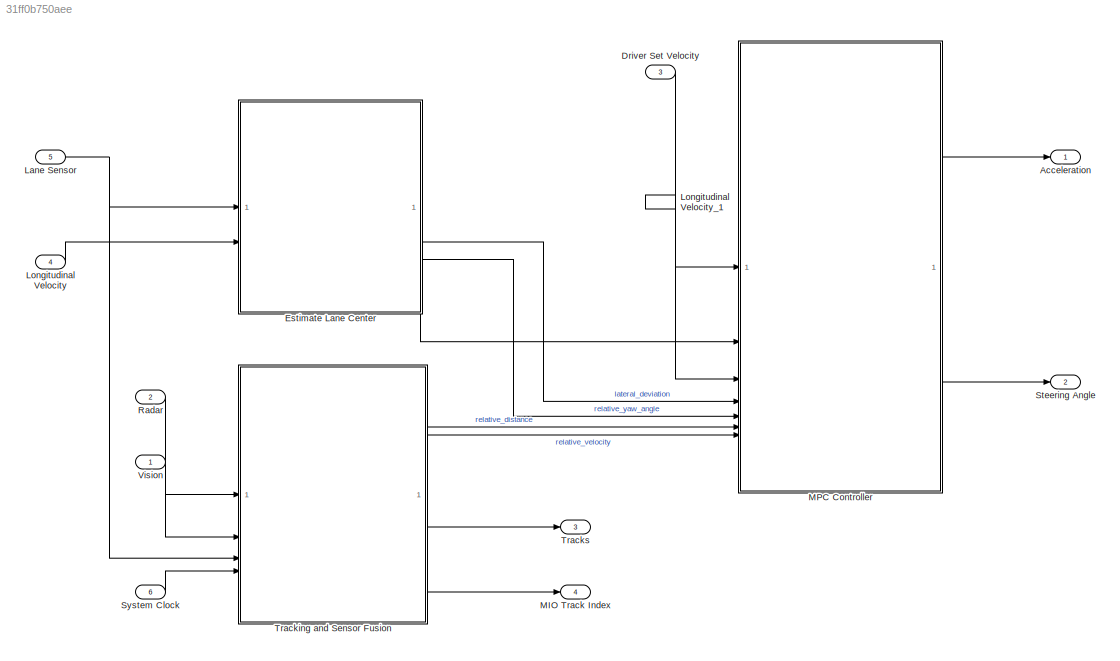
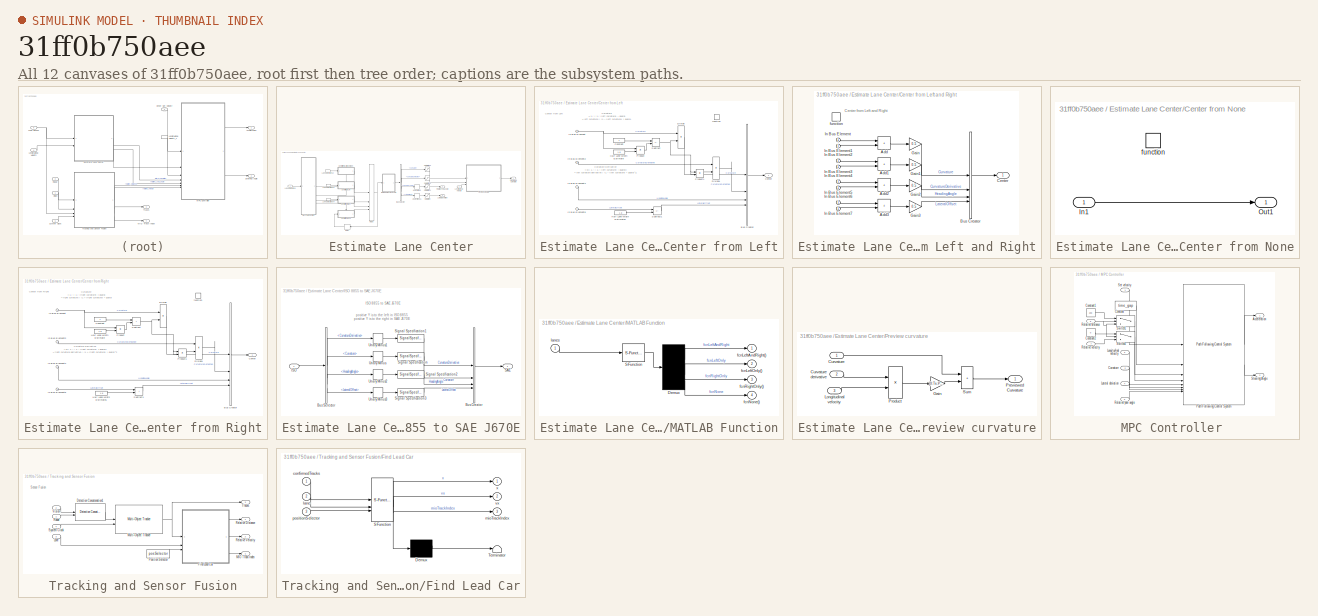
[diagram: thumbnail index - all 12 canvases of the model, root first then tree order]
MODEL slx_31ff0b750aee
KIND model
CONFIG AbsTol = auto
CONFIG EnableMultiTasking = off
CONFIG FixedStep = Ts
CONFIG MaxStep = auto
CONFIG MinStep = auto
CONFIG RelTol = 1e-3
CONFIG SampleTimeConstraint = Unconstrained
CONFIG SolverName = FixedStepDiscrete
CONFIG StartTime = 0.0
CONFIG StopTime = inf
BLOCK [Outport] Acceleration
  PortDimensions = 1
  SamplingMode = Sample based
  SignalType = real
  VectorParamsAs1DForOutWhenUnconnected = off
BLOCK [Inport] Driver Set Velocity
  OutDataTypeStr = double
  Port = 3
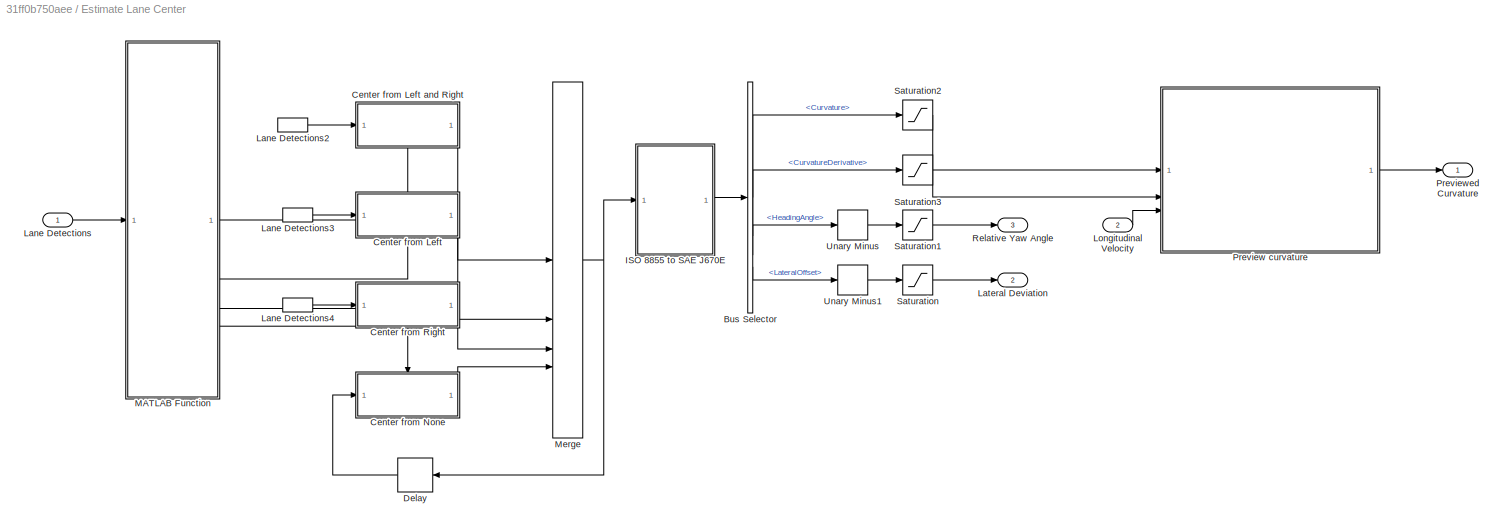
BLOCK [SubSystem] Estimate Lane Center
  RTWFileNameOpts = Use function name
  RTWSystemCode = Reusable function
  TreatAsAtomicUnit = on
  VariantControl = v2
BLOCK [BusSelector] Estimate Lane Center/Bus Selector
  OutputSignals = Curvature,CurvatureDerivative,HeadingAngle,LateralOffset
BLOCK [SubSystem] Estimate Lane Center/Center from Left
  TreatAsAtomicUnit = on
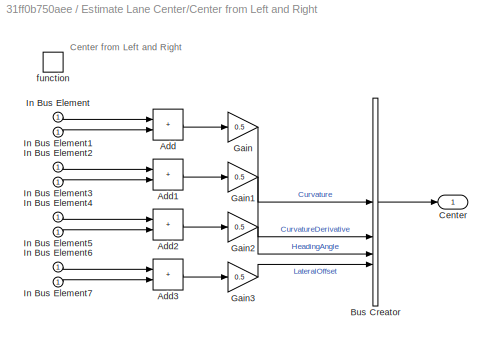
BLOCK [SubSystem] Estimate Lane Center/Center from Left and Right
  TreatAsAtomicUnit = on
BLOCK [Sum] Estimate Lane Center/Center from Left and Right/Add
  IconShape = rectangular
BLOCK [Sum] Estimate Lane Center/Center from Left and Right/Add1
  IconShape = rectangular
BLOCK [Sum] Estimate Lane Center/Center from Left and Right/Add2
  IconShape = rectangular
BLOCK [Sum] Estimate Lane Center/Center from Left and Right/Add3
  IconShape = rectangular
BLOCK [BusCreator] Estimate Lane Center/Center from Left and Right/Bus Creator
  DisplayOption = bar
  InheritFromInputs = on
  Inputs = 4
BLOCK [Outport] Estimate Lane Center/Center from Left and Right/Center
  VectorParamsAs1DForOutWhenUnconnected = off
BLOCK [Gain] Estimate Lane Center/Center from Left and Right/Gain
  Gain = 0.5
BLOCK [Gain] Estimate Lane Center/Center from Left and Right/Gain1
  Gain = 0.5
BLOCK [Gain] Estimate Lane Center/Center from Left and Right/Gain2
  Gain = 0.5
BLOCK [Gain] Estimate Lane Center/Center from Left and Right/Gain3
  Gain = 0.5
BLOCK [Inport] Estimate Lane Center/Center from Left and Right/In Bus Element
BLOCK [Inport] Estimate Lane Center/Center from Left and Right/In Bus Element1
BLOCK [Inport] Estimate Lane Center/Center from Left and Right/In Bus Element2
BLOCK [Inport] Estimate Lane Center/Center from Left and Right/In Bus Element3
BLOCK [Inport] Estimate Lane Center/Center from Left and Right/In Bus Element4
BLOCK [Inport] Estimate Lane Center/Center from Left and Right/In Bus Element5
BLOCK [Inport] Estimate Lane Center/Center from Left and Right/In Bus Element6
BLOCK [Inport] Estimate Lane Center/Center from Left and Right/In Bus Element7
BLOCK [TriggerPort] Estimate Lane Center/Center from Left and Right/function
  StatesWhenEnabling = held
  TriggerType = function-call
  VariantControl = Variant
BLOCK [BusCreator] Estimate Lane Center/Center from Left/Bus Creator
  DisplayOption = bar
  InheritFromInputs = on
  Inputs = 4
BLOCK [Outport] Estimate Lane Center/Center from Left/Center
  VectorParamsAs1DForOutWhenUnconnected = off
BLOCK [Constant] Estimate Lane Center/Center from Left/Constant
  OutDataTypeStr = Inherit: Inherit via back propagation
BLOCK [Product] Estimate Lane Center/Center from Left/Divide
  Inputs = */
BLOCK [Product] Estimate Lane Center/Center from Left/Divide1
  Inputs = */
BLOCK [Constant] Estimate Lane Center/Center from Left/Half Lane Width Estimate
  OutDataTypeStr = Inherit: Inherit via back propagation
  Value = 1.8
BLOCK [Constant] Estimate Lane Center/Center from Left/Half Lane Width Estimate1
  OutDataTypeStr = Inherit: Inherit via back propagation
  Value = 1.8
BLOCK [Inport] Estimate Lane Center/Center from Left/In Bus Element
BLOCK [Inport] Estimate Lane Center/Center from Left/In Bus Element2
BLOCK [Inport] Estimate Lane Center/Center from Left/In Bus Element4
BLOCK [Inport] Estimate Lane Center/Center from Left/In Bus Element6
BLOCK [Product] Estimate Lane Center/Center from Left/Product
BLOCK [Product] Estimate Lane Center/Center from Left/Product1
BLOCK [Sum] Estimate Lane Center/Center from Left/Subtract
  IconShape = rectangular
  Inputs = +-
BLOCK [Sum] Estimate Lane Center/Center from Left/Subtract1
  IconShape = rectangular
  Inputs = +-
BLOCK [TriggerPort] Estimate Lane Center/Center from Left/function
  StatesWhenEnabling = held
  TriggerType = function-call
  VariantControl = Variant
BLOCK [SubSystem] Estimate Lane Center/Center from None
  TreatAsAtomicUnit = on
BLOCK [Inport] Estimate Lane Center/Center from None/In1
BLOCK [Outport] Estimate Lane Center/Center from None/Out1
  VectorParamsAs1DForOutWhenUnconnected = off
BLOCK [TriggerPort] Estimate Lane Center/Center from None/function
  StatesWhenEnabling = held
  TriggerType = function-call
  VariantControl = Variant
BLOCK [SubSystem] Estimate Lane Center/Center from Right
  TreatAsAtomicUnit = on
BLOCK [BusCreator] Estimate Lane Center/Center from Right/Bus Creator
  DisplayOption = bar
  InheritFromInputs = on
  Inputs = 4
BLOCK [Outport] Estimate Lane Center/Center from Right/Center
  VectorParamsAs1DForOutWhenUnconnected = off
BLOCK [Constant] Estimate Lane Center/Center from Right/Constant
  OutDataTypeStr = Inherit: Inherit via back propagation
BLOCK [Product] Estimate Lane Center/Center from Right/Divide
  Inputs = */
BLOCK [Product] Estimate Lane Center/Center from Right/Divide1
  Inputs = */
BLOCK [Constant] Estimate Lane Center/Center from Right/Half Lane Width Estimate
  OutDataTypeStr = Inherit: Inherit via back propagation
  Value = 1.8
BLOCK [Constant] Estimate Lane Center/Center from Right/Half Lane Width Estimate1
  OutDataTypeStr = Inherit: Inherit via back propagation
  Value = 1.8
BLOCK [Inport] Estimate Lane Center/Center from Right/In Bus Element
BLOCK [Inport] Estimate Lane Center/Center from Right/In Bus Element2
BLOCK [Inport] Estimate Lane Center/Center from Right/In Bus Element4
BLOCK [Inport] Estimate Lane Center/Center from Right/In Bus Element6
BLOCK [Product] Estimate Lane Center/Center from Right/Product
BLOCK [Product] Estimate Lane Center/Center from Right/Product1
BLOCK [Sum] Estimate Lane Center/Center from Right/Subtract
  IconShape = rectangular
BLOCK [Sum] Estimate Lane Center/Center from Right/Subtract1
  IconShape = rectangular
BLOCK [TriggerPort] Estimate Lane Center/Center from Right/function
  StatesWhenEnabling = held
  TriggerType = function-call
  VariantControl = Variant
BLOCK [Delay] Estimate Lane Center/Delay
  DelayLength = 1
  InputPortMap = u0
BLOCK [SubSystem] Estimate Lane Center/ISO 8855 to SAE J670E
BLOCK [BusCreator] Estimate Lane Center/ISO 8855 to SAE J670E/Bus Creator
  DisplayOption = bar
  InheritFromInputs = on
  Inputs = 4
BLOCK [BusSelector] Estimate Lane Center/ISO 8855 to SAE J670E/Bus Selector
  OutputSignals = CurvatureDerivative,Curvature,HeadingAngle,LateralOffset
BLOCK [Inport] Estimate Lane Center/ISO 8855 to SAE J670E/ISO
BLOCK [Outport] Estimate Lane Center/ISO 8855 to SAE J670E/SAE
  VectorParamsAs1DForOutWhenUnconnected = off
BLOCK [SignalSpecification] Estimate Lane Center/ISO 8855 to SAE J670E/Signal Specification
  Unit = 1/m^2
BLOCK [SignalSpecification] Estimate Lane Center/ISO 8855 to SAE J670E/Signal Specification1
  Unit = 1/m
BLOCK [SignalSpecification] Estimate Lane Center/ISO 8855 to SAE J670E/Signal Specification2
  Unit = rad
BLOCK [SignalSpecification] Estimate Lane Center/ISO 8855 to SAE J670E/Signal Specification3
  Unit = m
BLOCK [UnaryMinus] Estimate Lane Center/ISO 8855 to SAE J670E/Unary Minus
BLOCK [UnaryMinus] Estimate Lane Center/ISO 8855 to SAE J670E/Unary Minus1
BLOCK [UnaryMinus] Estimate Lane Center/ISO 8855 to SAE J670E/Unary Minus2
BLOCK [UnaryMinus] Estimate Lane Center/ISO 8855 to SAE J670E/Unary Minus3
BLOCK [Inport] Estimate Lane Center/Lane Detections
BLOCK [InportShadow] Estimate Lane Center/Lane Detections2
BLOCK [InportShadow] Estimate Lane Center/Lane Detections3
BLOCK [InportShadow] Estimate Lane Center/Lane Detections4
BLOCK [Outport] Estimate Lane Center/Lateral Deviation
  Port = 2
  VectorParamsAs1DForOutWhenUnconnected = off
BLOCK [Inport] Estimate Lane Center/Longitudinal Velocity
  Port = 2
BLOCK [SubSystem] Estimate Lane Center/MATLAB Function
  ErrorFcn = Stateflow.Translate.translate
  PermitHierarchicalResolution = ExplicitOnly
  SFBlockType = MATLAB Function
  TreatAsAtomicUnit = on
BLOCK [Demux] Estimate Lane Center/MATLAB Function/ Demux 
BLOCK [S-Function] Estimate Lane Center/MATLAB Function/ SFunction 
  EnableBusSupport = on
  FunctionName = sf_sfun
  PortCounts = [1 1]
  SFcnIsStateOwnerBlock = off
  SFunctionDeploymentMode = off
  Tag = Stateflow S-Function 9
BLOCK [Outport] Estimate Lane Center/MATLAB Function/fcnLeftAndRight()
  VectorParamsAs1DForOutWhenUnconnected = off
BLOCK [Outport] Estimate Lane Center/MATLAB Function/fcnLeftOnly()
  Port = 2
  VectorParamsAs1DForOutWhenUnconnected = off
BLOCK [Outport] Estimate Lane Center/MATLAB Function/fcnNone()
  Port = 4
  VectorParamsAs1DForOutWhenUnconnected = off
BLOCK [Outport] Estimate Lane Center/MATLAB Function/fcnRightOnly()
  Port = 3
  VectorParamsAs1DForOutWhenUnconnected = off
BLOCK [Inport] Estimate Lane Center/MATLAB Function/lanes
BLOCK [Merge] Estimate Lane Center/Merge
  Inputs = 4
BLOCK [SubSystem] Estimate Lane Center/Preview curvature
BLOCK [Inport] Estimate Lane Center/Preview curvature/Curvature
BLOCK [Inport] Estimate Lane Center/Preview curvature/Curvature derivative
  Port = 2
BLOCK [Gain] Estimate Lane Center/Preview curvature/Gain
  Gain = [0:Ts:PredictionHorizon*Ts]'
BLOCK [Inport] Estimate Lane Center/Preview curvature/Longitudinal velocity
  Port = 3
BLOCK [Outport] Estimate Lane Center/Preview curvature/Previewed Curvature
  VectorParamsAs1DForOutWhenUnconnected = off
BLOCK [Product] Estimate Lane Center/Preview curvature/Product
BLOCK [Sum] Estimate Lane Center/Preview curvature/Sum
  IconShape = rectangular
BLOCK [Outport] Estimate Lane Center/Previewed Curvature
  VectorParamsAs1DForOutWhenUnconnected = off
BLOCK [Outport] Estimate Lane Center/Relative Yaw Angle
  Port = 3
  VectorParamsAs1DForOutWhenUnconnected = off
BLOCK [Saturate] Estimate Lane Center/Saturation
BLOCK [Saturate] Estimate Lane Center/Saturation1
  LowerLimit = -0.6
  UpperLimit = 0.6
BLOCK [Saturate] Estimate Lane Center/Saturation2
  LowerLimit = -0.15
  UpperLimit = 0.15
BLOCK [Saturate] Estimate Lane Center/Saturation3
  LowerLimit = -0.06
  UpperLimit = 0.06
BLOCK [UnaryMinus] Estimate Lane Center/Unary Minus
BLOCK [UnaryMinus] Estimate Lane Center/Unary Minus1
BLOCK [Inport] Lane Sensor
  OutDataTypeStr = Bus: LaneSensor
  Port = 5
  PortDimensions = [1 1]
BLOCK [Inport] Longitudinal Velocity
  OutDataTypeStr = double
  Port = 4
  SamplingMode = Sample based
  Unit = m/s
BLOCK [InportShadow] Longitudinal Velocity_1
  OutDataTypeStr = double
  Port = 4
  SamplingMode = Sample based
  Unit = m/s
BLOCK [Outport] MIO Track Index
  BusOutputAsStruct = on
  Port = 4
  PortDimensions = 1
  SamplingMode = Sample based
  SignalType = real
  VectorParamsAs1DForOutWhenUnconnected = off
BLOCK [SubSystem] MPC Controller 
BLOCK [Outport] MPC Controller /Acceleration
  VectorParamsAs1DForOutWhenUnconnected = off
BLOCK [Constant] MPC Controller /Constant
  Value = time_gap
BLOCK [Constant] MPC Controller /Constant1
  Value = 200
BLOCK [Constant] MPC Controller /Constant2
  Value = 0
BLOCK [Inport] MPC Controller /Curvature
  Port = 2
BLOCK [Inport] MPC Controller /Lateral deviation
  Port = 4
BLOCK [Inport] MPC Controller /Longitudinal velocity
  Port = 3
BLOCK [Reference] MPC Controller /Path Following Control System  REF=mpcadaslib/Path Following Control System
  SourceBlock = mpcadaslib/Path Following Control System
  SourceType = Path following control (PFC) system
BLOCK [Inport] MPC Controller /Relative distance
  Port = 6
BLOCK [Inport] MPC Controller /Relative velocity
  Port = 7
BLOCK [Inport] MPC Controller /Relative yaw angle
  Port = 5
BLOCK [Inport] MPC Controller /Set velocity
BLOCK [Outport] MPC Controller /Steering Angle
  Port = 2
  VectorParamsAs1DForOutWhenUnconnected = off
BLOCK [Switch] MPC Controller /Switch1
  Criteria = u2 > Threshold
  InputSameDT = off
  SaturateOnIntegerOverflow = off
  Threshold = 1000
BLOCK [Switch] MPC Controller /Switch2
  Criteria = u2 > Threshold
  InputSameDT = off
  SaturateOnIntegerOverflow = off
  Threshold = 1000
BLOCK [Inport] Radar
  BusOutputAsStruct = on
  OutDataTypeStr = Bus: BusRadar
  Port = 2
  PortDimensions = [1 1]
BLOCK [Outport] Steering Angle
  Port = 2
  PortDimensions = 1
  SamplingMode = Sample based
  SignalType = real
  VectorParamsAs1DForOutWhenUnconnected = off
BLOCK [Inport] System Clock
  OutDataTypeStr = double
  Port = 6
  PortDimensions = [1 1]
BLOCK [SubSystem] Tracking and Sensor Fusion
  RTWFileNameOpts = Use function name
  RTWSystemCode = Reusable function
  TreatAsAtomicUnit = on
BLOCK [Reference] Tracking and Sensor Fusion/Detection Concatenation1  REF=trackingutilitieslib/Detection Concatenation
  SourceBlock = trackingutilitieslib/Detection Concatenation
  SourceType = matlabshared.tracking.internal.DetectionConcatenation
BLOCK [SubSystem] Tracking and Sensor Fusion/Find Lead Car
  ErrorFcn = Stateflow.Translate.translate
  PermitHierarchicalResolution = ExplicitOnly
  SFBlockType = MATLAB Function
  TreatAsAtomicUnit = on
BLOCK [Demux] Tracking and Sensor Fusion/Find Lead Car/ Demux 
  Outputs = 1
BLOCK [S-Function] Tracking and Sensor Fusion/Find Lead Car/ SFunction 
  EnableBusSupport = on
  FunctionName = sf_sfun
  PortCounts = [3 4]
  SFcnIsStateOwnerBlock = off
  SFunctionDeploymentMode = off
  Tag = Stateflow S-Function 4
BLOCK [Terminator] Tracking and Sensor Fusion/Find Lead Car/ Terminator 
BLOCK [Inport] Tracking and Sensor Fusion/Find Lead Car/confirmedTracks
BLOCK [Inport] Tracking and Sensor Fusion/Find Lead Car/lane
  Port = 2
BLOCK [Outport] Tracking and Sensor Fusion/Find Lead Car/mioTrackIndex
  Port = 3
  VectorParamsAs1DForOutWhenUnconnected = off
BLOCK [Inport] Tracking and Sensor Fusion/Find Lead Car/positionSelector
  Port = 3
BLOCK [Outport] Tracking and Sensor Fusion/Find Lead Car/vx
  Port = 2
  VectorParamsAs1DForOutWhenUnconnected = off
BLOCK [Outport] Tracking and Sensor Fusion/Find Lead Car/x
  VectorParamsAs1DForOutWhenUnconnected = off
BLOCK [Inport] Tracking and Sensor Fusion/Lane
  BusOutputAsStruct = on
  OutDataTypeStr = Bus: LaneSensor
  Port = 3
BLOCK [Outport] Tracking and Sensor Fusion/MIO Track Index
  Port = 4
  VectorParamsAs1DForOutWhenUnconnected = off
BLOCK [Reference] Tracking and Sensor Fusion/Multi-Object Tracker  REF=drivinglib/Multi-Object Tracker
  SourceBlock = drivinglib/Multi-Object Tracker
  SourceType = multiObjectTracker
BLOCK [Constant] Tracking and Sensor Fusion/Position Selector
  Value = posSelector
BLOCK [Inport] Tracking and Sensor Fusion/Radar
  BusOutputAsStruct = on
  OutDataTypeStr = Bus: BusRadar
  PortDimensions = [1 1]
BLOCK [Outport] Tracking and Sensor Fusion/Relative Distance
  VectorParamsAs1DForOutWhenUnconnected = off
BLOCK [Outport] Tracking and Sensor Fusion/Relative Velocity
  Port = 2
  VectorParamsAs1DForOutWhenUnconnected = off
BLOCK [Inport] Tracking and Sensor Fusion/System Clock
  OutDataTypeStr = double
  Port = 4
  PortDimensions = [1 1]
BLOCK [Outport] Tracking and Sensor Fusion/Tracks
  BusOutputAsStruct = on
  OutDataTypeStr = Bus:BusMultiObjectTracker1
  Port = 3
  PortDimensions = [1 1]
  SamplingMode = Sample based
  SignalType = real
  VectorParamsAs1DForOutWhenUnconnected = off
BLOCK [Inport] Tracking and Sensor Fusion/Vision
  BusOutputAsStruct = on
  OutDataTypeStr = Bus: BusVision
  Port = 2
  PortDimensions = [1 1]
BLOCK [Outport] Tracks
  BusOutputAsStruct = on
  OutDataTypeStr = Bus: BusMultiObjectTracker1
  Port = 3
  PortDimensions = [1 1]
  VectorParamsAs1DForOutWhenUnconnected = off
BLOCK [Inport] Vision
  BusOutputAsStruct = on
  OutDataTypeStr = Bus: BusVision
  PortDimensions = [1 1]
ANNOTATION Estimate Lane Center/Center from Left: Center from Left
ANNOTATION Estimate Lane Center/Center from Left: Curvature = 1 / ( 1 / (left curvature) – guard) = left curvature / (1 – (left curvature) * guard).
ANNOTATION Estimate Lane Center/Center from Left: Curvature Derivative = D[ 1 / ( 1 / (left curvature) – guard)] = left curvature derivative / (1 – (left curvature) * guard)^2.
ANNOTATION Estimate Lane Center/Center from Left and Right: Center from Left and Right
ANNOTATION Estimate Lane Center/Center from Right: Center from Right
ANNOTATION Estimate Lane Center/Center from Right: Curvature = 1 / ( 1 / (right curvature) + guard) = right curvature / (1 + (right curvature) * guard)
ANNOTATION Estimate Lane Center/Center from Right: Curvature Derivative = D[ 1 / ( 1 / (right curvature) + guard)] = right curvature derivative / (1 + (right curvature) * guard)^2
ANNOTATION Estimate Lane Center/ISO 8855 to SAE J670E: ISO 8855 to SAE J670E
ANNOTATION Estimate Lane Center/ISO 8855 to SAE J670E: positive Y is to the left in ISO 8855 positive Y is to the right in SAE J670E
ANNOTATION Tracking and Sensor Fusion: Sensor Fusion
LINE Driver Set Velocity:1 -> MPC Controller :1
LINE Estimate Lane Center/Bus Selector:1 -> Estimate Lane Center/Saturation2:1
LINE Estimate Lane Center/Bus Selector:2 -> Estimate Lane Center/Saturation3:1
LINE Estimate Lane Center/Bus Selector:3 -> Estimate Lane Center/Unary Minus:1
LINE Estimate Lane Center/Bus Selector:4 -> Estimate Lane Center/Unary Minus1:1
LINE Estimate Lane Center/Center from Left and Right/Add1:1 -> Estimate Lane Center/Center from Left and Right/Gain1:1
LINE Estimate Lane Center/Center from Left and Right/Add2:1 -> Estimate Lane Center/Center from Left and Right/Gain2:1
LINE Estimate Lane Center/Center from Left and Right/Add3:1 -> Estimate Lane Center/Center from Left and Right/Gain3:1
LINE Estimate Lane Center/Center from Left and Right/Add:1 -> Estimate Lane Center/Center from Left and Right/Gain:1
LINE Estimate Lane Center/Center from Left and Right/Bus Creator:1 -> Estimate Lane Center/Center from Left and Right/Center:1
LINE Estimate Lane Center/Center from Left and Right/Gain1:1 -> Estimate Lane Center/Center from Left and Right/Bus Creator:2
LINE Estimate Lane Center/Center from Left and Right/Gain2:1 -> Estimate Lane Center/Center from Left and Right/Bus Creator:3
LINE Estimate Lane Center/Center from Left and Right/Gain3:1 -> Estimate Lane Center/Center from Left and Right/Bus Creator:4
LINE Estimate Lane Center/Center from Left and Right/Gain:1 -> Estimate Lane Center/Center from Left and Right/Bus Creator:1
LINE Estimate Lane Center/Center from Left and Right/In Bus Element1:1 -> Estimate Lane Center/Center from Left and Right/Add:2
LINE Estimate Lane Center/Center from Left and Right/In Bus Element2:1 -> Estimate Lane Center/Center from Left and Right/Add1:1
LINE Estimate Lane Center/Center from Left and Right/In Bus Element3:1 -> Estimate Lane Center/Center from Left and Right/Add1:2
LINE Estimate Lane Center/Center from Left and Right/In Bus Element4:1 -> Estimate Lane Center/Center from Left and Right/Add2:1
LINE Estimate Lane Center/Center from Left and Right/In Bus Element5:1 -> Estimate Lane Center/Center from Left and Right/Add2:2
LINE Estimate Lane Center/Center from Left and Right/In Bus Element6:1 -> Estimate Lane Center/Center from Left and Right/Add3:1
LINE Estimate Lane Center/Center from Left and Right/In Bus Element7:1 -> Estimate Lane Center/Center from Left and Right/Add3:2
LINE Estimate Lane Center/Center from Left and Right/In Bus Element:1 -> Estimate Lane Center/Center from Left and Right/Add:1
LINE Estimate Lane Center/Center from Left and Right:1 -> Estimate Lane Center/Merge:1
LINE Estimate Lane Center/Center from Left/Bus Creator:1 -> Estimate Lane Center/Center from Left/Center:1
LINE Estimate Lane Center/Center from Left/Constant:1 -> Estimate Lane Center/Center from Left/Subtract:1
LINE Estimate Lane Center/Center from Left/Divide1:1 -> Estimate Lane Center/Center from Left/Bus Creator:2
LINE Estimate Lane Center/Center from Left/Divide:1 -> Estimate Lane Center/Center from Left/Bus Creator:1
LINE Estimate Lane Center/Center from Left/Half Lane Width Estimate1:1 -> Estimate Lane Center/Center from Left/Subtract1:2
LINE Estimate Lane Center/Center from Left/Half Lane Width Estimate:1 -> Estimate Lane Center/Center from Left/Product:2
LINE Estimate Lane Center/Center from Left/In Bus Element2:1 -> Estimate Lane Center/Center from Left/Divide1:1
LINE Estimate Lane Center/Center from Left/In Bus Element4:1 -> Estimate Lane Center/Center from Left/Bus Creator:3
LINE Estimate Lane Center/Center from Left/In Bus Element6:1 -> Estimate Lane Center/Center from Left/Subtract1:1
NET Estimate Lane Center/Center from Left/In Bus Element:1 -> Estimate Lane Center/Center from Left/Divide:1, Estimate Lane Center/Center from Left/Product:1
LINE Estimate Lane Center/Center from Left/Product1:1 -> Estimate Lane Center/Center from Left/Divide1:2
LINE Estimate Lane Center/Center from Left/Product:1 -> Estimate Lane Center/Center from Left/Subtract:2
LINE Estimate Lane Center/Center from Left/Subtract1:1 -> Estimate Lane Center/Center from Left/Bus Creator:4
NET Estimate Lane Center/Center from Left/Subtract:1 -> Estimate Lane Center/Center from Left/Divide:2, Estimate Lane Center/Center from Left/Product1:1, Estimate Lane Center/Center from Left/Product1:2
LINE Estimate Lane Center/Center from Left:1 -> Estimate Lane Center/Merge:2
LINE Estimate Lane Center/Center from None/In1:1 -> Estimate Lane Center/Center from None/Out1:1
LINE Estimate Lane Center/Center from None:1 -> Estimate Lane Center/Merge:4
LINE Estimate Lane Center/Center from Right/Bus Creator:1 -> Estimate Lane Center/Center from Right/Center:1
LINE Estimate Lane Center/Center from Right/Constant:1 -> Estimate Lane Center/Center from Right/Subtract:1
LINE Estimate Lane Center/Center from Right/Divide1:1 -> Estimate Lane Center/Center from Right/Bus Creator:2
LINE Estimate Lane Center/Center from Right/Divide:1 -> Estimate Lane Center/Center from Right/Bus Creator:1
LINE Estimate Lane Center/Center from Right/Half Lane Width Estimate1:1 -> Estimate Lane Center/Center from Right/Subtract1:2
LINE Estimate Lane Center/Center from Right/Half Lane Width Estimate:1 -> Estimate Lane Center/Center from Right/Product:2
LINE Estimate Lane Center/Center from Right/In Bus Element2:1 -> Estimate Lane Center/Center from Right/Divide1:1
LINE Estimate Lane Center/Center from Right/In Bus Element4:1 -> Estimate Lane Center/Center from Right/Bus Creator:3
LINE Estimate Lane Center/Center from Right/In Bus Element6:1 -> Estimate Lane Center/Center from Right/Subtract1:1
NET Estimate Lane Center/Center from Right/In Bus Element:1 -> Estimate Lane Center/Center from Right/Divide:1, Estimate Lane Center/Center from Right/Product:1
LINE Estimate Lane Center/Center from Right/Product1:1 -> Estimate Lane Center/Center from Right/Divide1:2
LINE Estimate Lane Center/Center from Right/Product:1 -> Estimate Lane Center/Center from Right/Subtract:2
LINE Estimate Lane Center/Center from Right/Subtract1:1 -> Estimate Lane Center/Center from Right/Bus Creator:4
NET Estimate Lane Center/Center from Right/Subtract:1 -> Estimate Lane Center/Center from Right/Divide:2, Estimate Lane Center/Center from Right/Product1:1, Estimate Lane Center/Center from Right/Product1:2
LINE Estimate Lane Center/Center from Right:1 -> Estimate Lane Center/Merge:3
LINE Estimate Lane Center/Delay:1 -> Estimate Lane Center/Center from None:1
LINE Estimate Lane Center/ISO 8855 to SAE J670E/Bus Creator:1 -> Estimate Lane Center/ISO 8855 to SAE J670E/SAE:1
LINE Estimate Lane Center/ISO 8855 to SAE J670E/Bus Selector:1 -> Estimate Lane Center/ISO 8855 to SAE J670E/Unary Minus1:1
LINE Estimate Lane Center/ISO 8855 to SAE J670E/Bus Selector:2 -> Estimate Lane Center/ISO 8855 to SAE J670E/Unary Minus:1
LINE Estimate Lane Center/ISO 8855 to SAE J670E/Bus Selector:3 -> Estimate Lane Center/ISO 8855 to SAE J670E/Unary Minus2:1
LINE Estimate Lane Center/ISO 8855 to SAE J670E/Bus Selector:4 -> Estimate Lane Center/ISO 8855 to SAE J670E/Unary Minus3:1
LINE Estimate Lane Center/ISO 8855 to SAE J670E/ISO:1 -> Estimate Lane Center/ISO 8855 to SAE J670E/Bus Selector:1
LINE Estimate Lane Center/ISO 8855 to SAE J670E/Signal Specification1:1 -> Estimate Lane Center/ISO 8855 to SAE J670E/Bus Creator:1
LINE Estimate Lane Center/ISO 8855 to SAE J670E/Signal Specification2:1 -> Estimate Lane Center/ISO 8855 to SAE J670E/Bus Creator:3
LINE Estimate Lane Center/ISO 8855 to SAE J670E/Signal Specification3:1 -> Estimate Lane Center/ISO 8855 to SAE J670E/Bus Creator:4
LINE Estimate Lane Center/ISO 8855 to SAE J670E/Signal Specification:1 -> Estimate Lane Center/ISO 8855 to SAE J670E/Bus Creator:2
LINE Estimate Lane Center/ISO 8855 to SAE J670E/Unary Minus1:1 -> Estimate Lane Center/ISO 8855 to SAE J670E/Signal Specification1:1
LINE Estimate Lane Center/ISO 8855 to SAE J670E/Unary Minus2:1 -> Estimate Lane Center/ISO 8855 to SAE J670E/Signal Specification2:1
LINE Estimate Lane Center/ISO 8855 to SAE J670E/Unary Minus3:1 -> Estimate Lane Center/ISO 8855 to SAE J670E/Signal Specification3:1
LINE Estimate Lane Center/ISO 8855 to SAE J670E/Unary Minus:1 -> Estimate Lane Center/ISO 8855 to SAE J670E/Signal Specification:1
LINE Estimate Lane Center/ISO 8855 to SAE J670E:1 -> Estimate Lane Center/Bus Selector:1
LINE Estimate Lane Center/Lane Detections2:1 -> Estimate Lane Center/Center from Left and Right:1
LINE Estimate Lane Center/Lane Detections3:1 -> Estimate Lane Center/Center from Left:1
LINE Estimate Lane Center/Lane Detections4:1 -> Estimate Lane Center/Center from Right:1
LINE Estimate Lane Center/Lane Detections:1 -> Estimate Lane Center/MATLAB Function:1
LINE Estimate Lane Center/Longitudinal Velocity:1 -> Estimate Lane Center/Preview curvature:3
LINE Estimate Lane Center/MATLAB Function:1 -> Estimate Lane Center/Center from Left and Right:trigger
LINE Estimate Lane Center/MATLAB Function:2 -> Estimate Lane Center/Center from Left:trigger
LINE Estimate Lane Center/MATLAB Function:3 -> Estimate Lane Center/Center from Right:trigger
LINE Estimate Lane Center/MATLAB Function:4 -> Estimate Lane Center/Center from None:trigger
NET Estimate Lane Center/Merge:1 -> Estimate Lane Center/Delay:1, Estimate Lane Center/ISO 8855 to SAE J670E:1
LINE Estimate Lane Center/Preview curvature/Curvature derivative:1 -> Estimate Lane Center/Preview curvature/Product:1
LINE Estimate Lane Center/Preview curvature/Curvature:1 -> Estimate Lane Center/Preview curvature/Sum:1
LINE Estimate Lane Center/Preview curvature/Gain:1 -> Estimate Lane Center/Preview curvature/Sum:2
LINE Estimate Lane Center/Preview curvature/Longitudinal velocity:1 -> Estimate Lane Center/Preview curvature/Product:2
LINE Estimate Lane Center/Preview curvature/Product:1 -> Estimate Lane Center/Preview curvature/Gain:1
LINE Estimate Lane Center/Preview curvature/Sum:1 -> Estimate Lane Center/Preview curvature/Previewed Curvature:1
LINE Estimate Lane Center/Preview curvature:1 -> Estimate Lane Center/Previewed Curvature:1
LINE Estimate Lane Center/Saturation1:1 -> Estimate Lane Center/Relative Yaw Angle:1
LINE Estimate Lane Center/Saturation2:1 -> Estimate Lane Center/Preview curvature:1
LINE Estimate Lane Center/Saturation3:1 -> Estimate Lane Center/Preview curvature:2
LINE Estimate Lane Center/Saturation:1 -> Estimate Lane Center/Lateral Deviation:1
LINE Estimate Lane Center/Unary Minus1:1 -> Estimate Lane Center/Saturation:1
LINE Estimate Lane Center/Unary Minus:1 -> Estimate Lane Center/Saturation1:1
LINE Estimate Lane Center:1 -> MPC Controller :2
LINE Estimate Lane Center:2 -> MPC Controller :4
LINE Estimate Lane Center:3 -> MPC Controller :5
NET Lane Sensor:1 -> Estimate Lane Center:1, Tracking and Sensor Fusion:3
LINE Longitudinal Velocity:1 -> Estimate Lane Center:2
LINE Longitudinal Velocity_1:1 -> MPC Controller :3
LINE MPC Controller /Constant1:1 -> MPC Controller /Switch1:1
LINE MPC Controller /Constant2:1 -> MPC Controller /Switch2:1
LINE MPC Controller /Constant:1 -> MPC Controller /Path Following Control System:2
LINE MPC Controller /Curvature:1 -> MPC Controller /Path Following Control System:6
LINE MPC Controller /Lateral deviation:1 -> MPC Controller /Path Following Control System:7
LINE MPC Controller /Longitudinal velocity:1 -> MPC Controller /Path Following Control System:5
LINE MPC Controller /Path Following Control System:1 -> MPC Controller /Acceleration:1
LINE MPC Controller /Path Following Control System:2 -> MPC Controller /Steering Angle:1
NET MPC Controller /Relative distance:1 -> MPC Controller /Switch1:2, MPC Controller /Switch1:3, MPC Controller /Switch2:2
LINE MPC Controller /Relative velocity:1 -> MPC Controller /Switch2:3
LINE MPC Controller /Relative yaw angle:1 -> MPC Controller /Path Following Control System:8
LINE MPC Controller /Set velocity:1 -> MPC Controller /Path Following Control System:1
LINE MPC Controller /Switch1:1 -> MPC Controller /Path Following Control System:3
LINE MPC Controller /Switch2:1 -> MPC Controller /Path Following Control System:4
LINE MPC Controller :1 -> Acceleration:1
LINE MPC Controller :2 -> Steering Angle:1
LINE Radar:1 -> Tracking and Sensor Fusion:1
LINE System Clock:1 -> Tracking and Sensor Fusion:4
LINE Tracking and Sensor Fusion/Detection Concatenation1:1 -> Tracking and Sensor Fusion/Multi-Object Tracker:1
LINE Tracking and Sensor Fusion/Find Lead Car:1 -> Tracking and Sensor Fusion/Relative Distance:1
LINE Tracking and Sensor Fusion/Find Lead Car:2 -> Tracking and Sensor Fusion/Relative Velocity:1
LINE Tracking and Sensor Fusion/Find Lead Car:3 -> Tracking and Sensor Fusion/MIO Track Index:1
LINE Tracking and Sensor Fusion/Lane:1 -> Tracking and Sensor Fusion/Find Lead Car:2
NET Tracking and Sensor Fusion/Multi-Object Tracker:1 -> Tracking and Sensor Fusion/Find Lead Car:1, Tracking and Sensor Fusion/Tracks:1
LINE Tracking and Sensor Fusion/Position Selector:1 -> Tracking and Sensor Fusion/Find Lead Car:3
LINE Tracking and Sensor Fusion/Radar:1 -> Tracking and Sensor Fusion/Detection Concatenation1:2
LINE Tracking and Sensor Fusion/System Clock:1 -> Tracking and Sensor Fusion/Multi-Object Tracker:2
LINE Tracking and Sensor Fusion/Vision:1 -> Tracking and Sensor Fusion/Detection Concatenation1:1
LINE Tracking and Sensor Fusion:1 -> MPC Controller :6
LINE Tracking and Sensor Fusion:2 -> MPC Controller :7
LINE Tracking and Sensor Fusion:3 -> Tracks:1
LINE Tracking and Sensor Fusion:4 -> MIO Track Index:1
LINE Vision:1 -> Tracking and Sensor Fusion:2
note: NET lines group one-source signal fan-out (src -> all destinations, sorted); 1:1 wires keep LINE
CHART Tracking and Sensor Fusion/Find Lead Car states=1 transitions=1
  STATE_LABEL 'eML_blk_kernel()'
  STATE_LABEL "SCRIPT:\nfunction [x,vx,mioTrackIndex] = findLeadCar(confirmedTracks, lane, positionSelector)\n% This function finds the lead car: a car in front of the ego car that\n% satisfies all the criteria below:\n% * Within the ego car's lane.\n% * In front of the ego car.\n% * Closest to the ego car.\n\n% Note: If you change state definition, change the following:\n%       State = [x;vx;y;vy;z;vz] (3D constant vel...<+1802ch>"
CHART Estimate Lane Center/MATLAB Function states=1 transitions=1
  STATE_LABEL 'eML_blk_kernel()'
  STATE_LABEL 'SCRIPT:\nfunction fcn(lanes)\n\nleftStrength  = lanes.Left.Strength;\nrightStrength = lanes.Right.Strength;\n\nif (leftStrength > 0) && (rightStrength > 0)\n   fcnLeftAndRight();\n   \nelseif leftStrength > 0\n    fcnLeftOnly();\n    \nelseif rightStrength > 0\n    fcnRightOnly();\n    \nelse\n    fcnNone();\nend'
CHART  states=0 transitions=0
CHART  states=0 transitions=0
